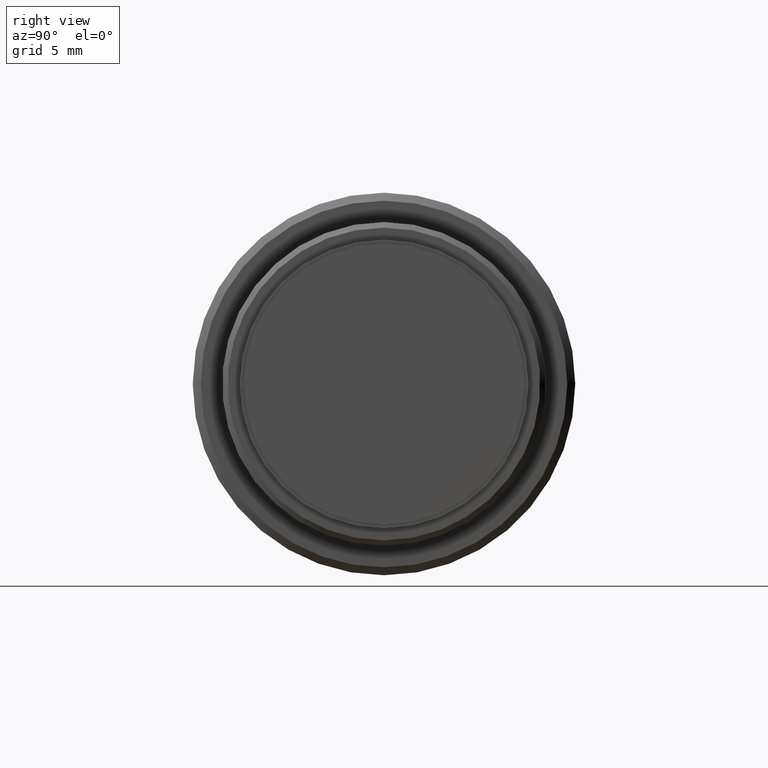
[diagram: clean part render]
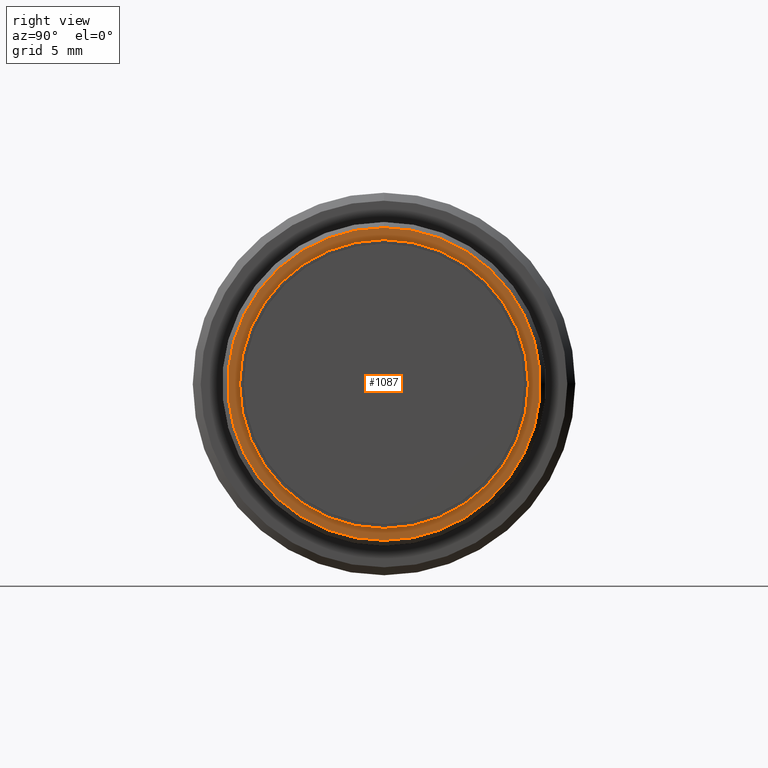
[diagram: same view with one face highlighted and labeled with its STEP entity id]
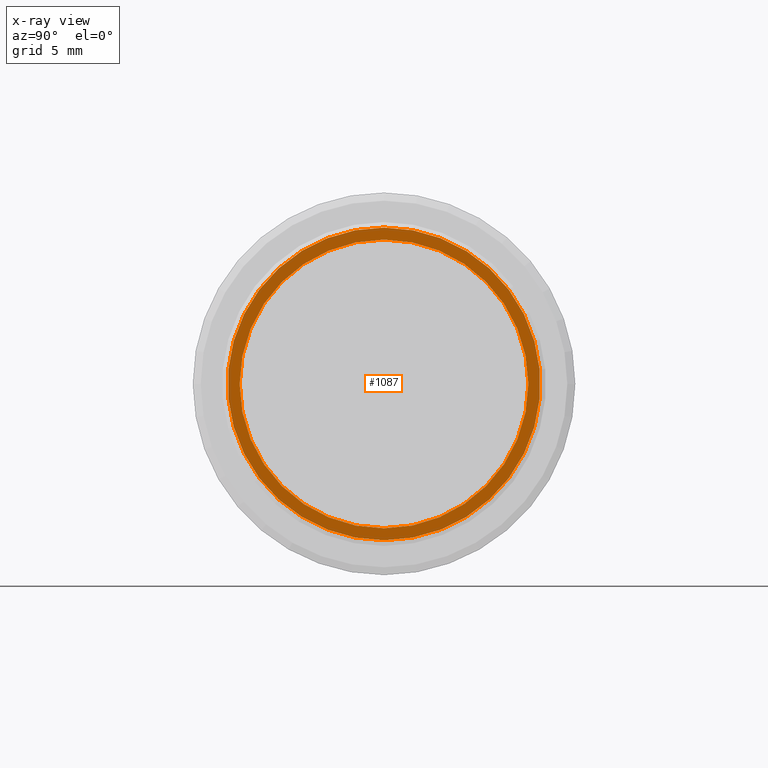
[diagram: x-ray of the same camera — body ghosted, the highlighted face saturated]
A machine part, right view. The second image highlights one B-rep face of the part: STEP entity #1087.
The next image is the same camera in x-ray: the body ghosted, the highlighted face saturated — about 0% of this face is hidden behind the body in this view.
In plain terms, the highlighted planar face has unit normal (1, 0, 0).
Its self-contained STEP definition (entity closure, byte-faithful):
#82 = CARTESIAN_POINT ( 'NONE',  ( -1.399999999999999911, 0.000000000000000000, -9.060000000000000497 ) ) ;
#170 = DIRECTION ( 'NONE',  ( 1.000000000000000000, 0.000000000000000000, 0.000000000000000000 ) ) ;
#196 = CIRCLE ( 'NONE', #306, 9.809999999999998721 ) ;
#210 = VERTEX_POINT ( 'NONE', #82 ) ;
#237 = EDGE_CURVE ( 'NONE', #886, #294, #196, .T. ) ;
#251 = CIRCLE ( 'NONE', #505, 9.060000000000000497 ) ;
#257 = EDGE_CURVE ( 'NONE', #294, #886, #891, .T. ) ;
#259 = CARTESIAN_POINT ( 'NONE',  ( -1.399999999999999911, 0.000000000000000000, 0.000000000000000000 ) ) ;
#273 = DIRECTION ( 'NONE',  ( 0.000000000000000000, 0.000000000000000000, -1.000000000000000000 ) ) ;
#279 = CARTESIAN_POINT ( 'NONE',  ( -1.399999999999999911, 1.109530000027501965E-15, 9.060000000000000497 ) ) ;
#294 = VERTEX_POINT ( 'NONE', #799 ) ;
#306 = AXIS2_PLACEMENT_3D ( 'NONE', #259, #170, #973 ) ;
#326 = CARTESIAN_POINT ( 'NONE',  ( -1.399999999999999911, 9.809999999999998721, 0.000000000000000000 ) ) ;
#339 = FACE_OUTER_BOUND ( 'NONE', #644, .T. ) ;
#380 = CARTESIAN_POINT ( 'NONE',  ( -1.399999999999999911, 0.000000000000000000, 0.000000000000000000 ) ) ;
#402 = EDGE_CURVE ( 'NONE', #686, #210, #581, .T. ) ;
#476 = AXIS2_PLACEMENT_3D ( 'NONE', #1012, #556, #1086 ) ;
#484 = CARTESIAN_POINT ( 'NONE',  ( -1.399999999999999911, 0.000000000000000000, 9.809999999999998721 ) ) ;
#505 = AXIS2_PLACEMENT_3D ( 'NONE', #380, #728, #273 ) ;
#556 = DIRECTION ( 'NONE',  ( 1.000000000000000000, 0.000000000000000000, 0.000000000000000000 ) ) ;
#581 = CIRCLE ( 'NONE', #476, 9.060000000000000497 ) ;
#597 = FACE_BOUND ( 'NONE', #627, .T. ) ;
#609 = DIRECTION ( 'NONE',  ( 1.000000000000000000, 0.000000000000000000, 0.000000000000000000 ) ) ;
#627 = EDGE_LOOP ( 'NONE', ( #1047, #998 ) ) ;
#644 = EDGE_LOOP ( 'NONE', ( #1007, #847 ) ) ;
#686 = VERTEX_POINT ( 'NONE', #279 ) ;
#696 = DIRECTION ( 'NONE',  ( 1.000000000000000000, 0.000000000000000000, 0.000000000000000000 ) ) ;
#724 = EDGE_CURVE ( 'NONE', #210, #686, #251, .T. ) ;
#728 = DIRECTION ( 'NONE',  ( 1.000000000000000000, 0.000000000000000000, 0.000000000000000000 ) ) ;
#799 = CARTESIAN_POINT ( 'NONE',  ( -1.399999999999999911, 1.222809828948632095E-15, -9.809999999999998721 ) ) ;
#819 = AXIS2_PLACEMENT_3D ( 'NONE', #878, #609, #1046 ) ;
#823 = AXIS2_PLACEMENT_3D ( 'NONE', #326, #696, #1040 ) ;
#847 = ORIENTED_EDGE ( 'NONE', *, *, #257, .T. ) ;
#878 = CARTESIAN_POINT ( 'NONE',  ( -1.399999999999999911, 0.000000000000000000, 0.000000000000000000 ) ) ;
#886 = VERTEX_POINT ( 'NONE', #484 ) ;
#891 = CIRCLE ( 'NONE', #819, 9.809999999999998721 ) ;
#973 = DIRECTION ( 'NONE',  ( 0.000000000000000000, 0.000000000000000000, -1.000000000000000000 ) ) ;
#998 = ORIENTED_EDGE ( 'NONE', *, *, #402, .F. ) ;
#1007 = ORIENTED_EDGE ( 'NONE', *, *, #237, .T. ) ;
#1012 = CARTESIAN_POINT ( 'NONE',  ( -1.399999999999999911, 0.000000000000000000, 0.000000000000000000 ) ) ;
#1024 = PLANE ( 'NONE',  #823 ) ;
#1040 = DIRECTION ( 'NONE',  ( 0.000000000000000000, 1.000000000000000000, 0.000000000000000000 ) ) ;
#1046 = DIRECTION ( 'NONE',  ( 0.000000000000000000, 0.000000000000000000, -1.000000000000000000 ) ) ;
#1047 = ORIENTED_EDGE ( 'NONE', *, *, #724, .F. ) ;
#1086 = DIRECTION ( 'NONE',  ( 0.000000000000000000, 0.000000000000000000, -1.000000000000000000 ) ) ;
#1087 = ADVANCED_FACE ( 'NONE', ( #339, #597 ), #1024, .T. ) ;